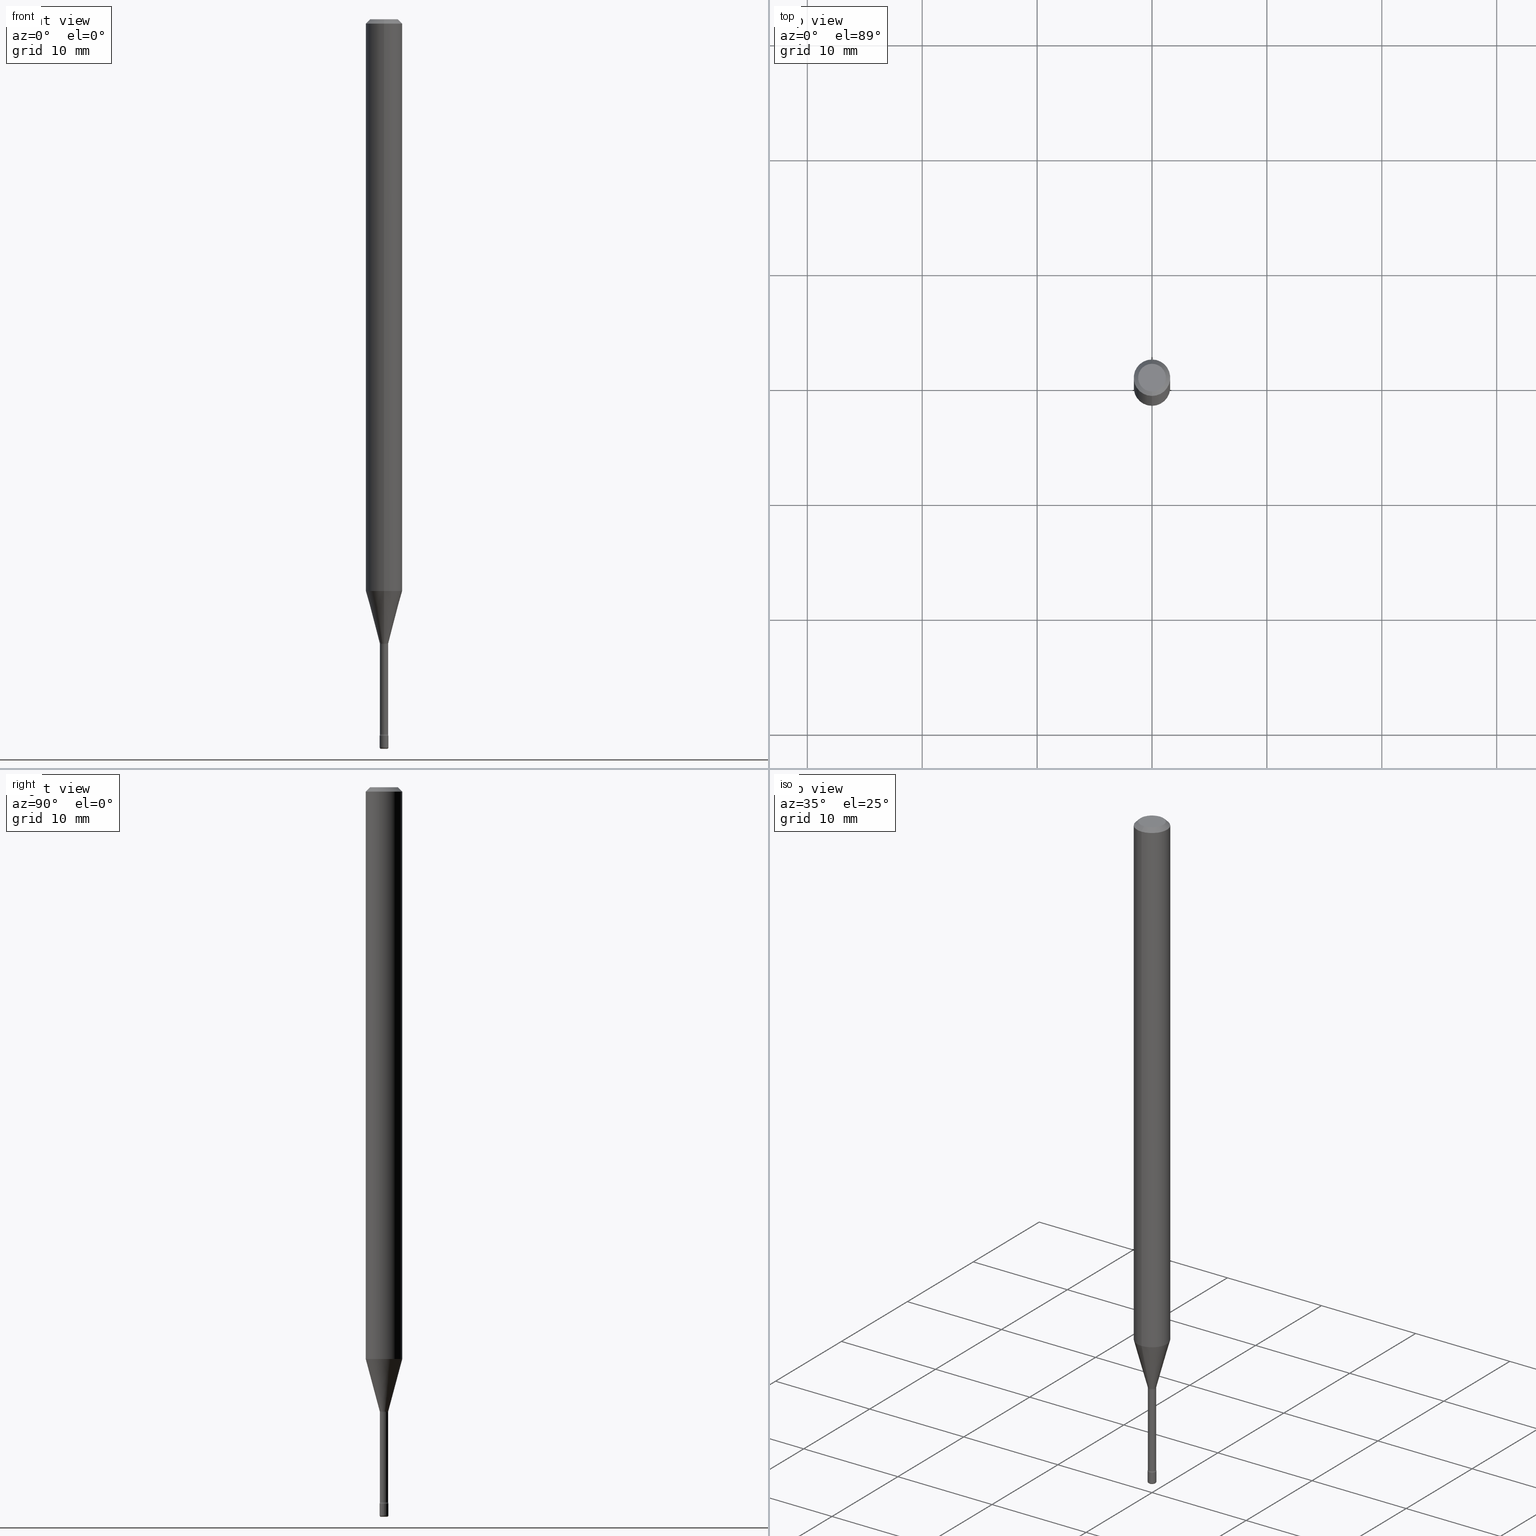
[diagram: canonical four-view strip — front | top / right | iso, engineering-drawing reading convention]
A machine part, canonical four-view strip (front | top / right | iso — engineering-drawing reading convention). The complete STEP part file that produces these views, byte-faithful:
ISO-10303-21;
HEADER;
FILE_DESCRIPTION (( 'STEP AP203' ),
    '1' );
FILE_NAME ('08895.STEP',
    '2024-03-06T20:09:28',
    ( '' ),
    ( '' ),
    'SwSTEP 2.0',
    'SolidWorks 2023',
    '' );
FILE_SCHEMA (( 'CONFIG_CONTROL_DESIGN' ));
ENDSEC;

DATA;
#1 = COORDINATED_UNIVERSAL_TIME_OFFSET ( 5, 0, .BEHIND. ) ;
#2 = DIRECTION ( 'NONE',  ( -2.445468806185136597E-29, 3.491481338843145583E-15, 1.000000000000000000 ) ) ;
#3 = EDGE_CURVE ( 'NONE', #459, #292, #555, .T. ) ;
#4 = PLANE ( 'NONE',  #319 ) ;
#5 = AXIS2_PLACEMENT_3D ( 'NONE', #564, #521, #468 ) ;
#6 = CARTESIAN_POINT ( 'NONE',  ( 5.238132526377788520E-29, -7.478664998702409610E-15, -2.141974787463811314 ) ) ;
#7 = EDGE_CURVE ( 'NONE', #29, #292, #561, .T. ) ;
#8 = SHAPE_DEFINITION_REPRESENTATION ( #64, #335 ) ;
#9 = ORIENTED_EDGE ( 'NONE', *, *, #115, .F. ) ;
#10 = CARTESIAN_POINT ( 'NONE',  ( -4.364351673553916201E-16, -0.06250000000000000000, 6.962907463373856563E-16 ) ) ;
#11 = ORIENTED_EDGE ( 'NONE', *, *, #540, .F. ) ;
#12 = VERTEX_POINT ( 'NONE', #214 ) ;
#13 = DIRECTION ( 'NONE',  ( -6.982962677686265922E-15, -1.000000000000000000, 3.491477559138235068E-15 ) ) ;
#14 = ORIENTED_EDGE ( 'NONE', *, *, #167, .T. ) ;
#15 = ADVANCED_FACE ( 'NONE', ( #163 ), #38, .F. ) ;
#16 = EDGE_CURVE ( 'NONE', #86, #406, #130, .T. ) ;
#17 = AXIS2_PLACEMENT_3D ( 'NONE', #345, #294, #73 ) ;
#18 = CIRCLE ( 'NONE', #114, 0.01500000000000003240 ) ;
#19 = VERTEX_POINT ( 'NONE', #470 ) ;
#20 = SECURITY_CLASSIFICATION ( '', '', #170 ) ;
#21 = DIMENSIONAL_EXPONENTS ( 1.000000000000000000, 0.000000000000000000, 0.000000000000000000, 0.000000000000000000, 0.000000000000000000, 0.000000000000000000, 0.000000000000000000 ) ;
#22 = ORIENTED_EDGE ( 'NONE', *, *, #565, .T. ) ;
#23 = CARTESIAN_POINT ( 'NONE',  ( 4.440892098501108353E-16, 0.06249999999999995143, -0.01500000000000024578 ) ) ;
#24 = VERTEX_POINT ( 'NONE', #110 ) ;
#25 = CARTESIAN_POINT ( 'NONE',  ( 3.668207168308460227E-31, -5.237216338707361944E-17, -0.01500000000000002720 ) ) ;
#26 = EDGE_CURVE ( 'NONE', #19, #481, #72, .T. ) ;
#27 = ORIENTED_EDGE ( 'NONE', *, *, #343, .F. ) ;
#28 = DIRECTION ( 'NONE',  ( -2.445468806185136597E-29, 3.491481338843145583E-15, 1.000000000000000000 ) ) ;
#29 = VERTEX_POINT ( 'NONE', #300 ) ;
#30 = AXIS2_PLACEMENT_3D ( 'NONE', #134, #57, #381 ) ;
#31 = CC_DESIGN_PERSON_AND_ORGANIZATION_ASSIGNMENT ( #358, #490, ( #20 ) ) ;
#32 = CARTESIAN_POINT ( 'NONE',  ( 1.033839680531545582E-16, 0.01409999999999143362, -2.449882383367230521 ) ) ;
#33 = ORIENTED_EDGE ( 'NONE', *, *, #427, .F. ) ;
#34 = FACE_OUTER_BOUND ( 'NONE', #79, .T. ) ;
#35 = ORIENTED_EDGE ( 'NONE', *, *, #332, .T. ) ;
#36 = CARTESIAN_POINT ( 'NONE',  ( 2.067679361062415209E-16, 0.02909999999999252074, -2.141974787463811314 ) ) ;
#37 = ORIENTED_EDGE ( 'NONE', *, *, #16, .F. ) ;
#38 = TOROIDAL_SURFACE ( 'NONE', #366, 0.02910000000000000780, 0.01500000000000002200 ) ;
#39 = AXIS2_PLACEMENT_3D ( 'NONE', #263, #492, #362 ) ;
#40 = DATE_TIME_ROLE ( 'creation_date' ) ;
#41 = CARTESIAN_POINT ( 'NONE',  ( 0.01499999999999999944, -8.676331127025216680E-15, -2.455000000000000071 ) ) ;
#42 = LINE ( 'NONE', #174, #259 ) ;
#43 = EDGE_CURVE ( 'NONE', #426, #143, #562, .T. ) ;
#44 = CARTESIAN_POINT ( 'NONE',  ( 5.228644161041752934E-29, -7.465101989351990399E-15, -2.138092501787273392 ) ) ;
#45 = CIRCLE ( 'NONE', #249, 0.01461111260566397632 ) ;
#46 = CONICAL_SURFACE ( 'NONE', #413, 0.01461111260566397632, 0.2617993877991501295 ) ;
#47 = CARTESIAN_POINT ( 'NONE',  ( 3.316907271900976589E-16, 0.04750000000000000749, 5.964683201999552744E-17 ) ) ;
#48 = CARTESIAN_POINT ( 'NONE',  ( 4.791580307186014448E-29, -6.841091988977007284E-15, -1.959368740913666862 ) ) ;
#49 = ORIENTED_EDGE ( 'NONE', *, *, #59, .F. ) ;
#50 = FACE_OUTER_BOUND ( 'NONE', #339, .T. ) ;
#51 = APPROVAL ( #191, 'UNSPECIFIED' ) ;
#52 = VECTOR ( 'NONE', #373, 39.37007874015748143 ) ;
#53 = ORIENTED_EDGE ( 'NONE', *, *, #260, .T. ) ;
#54 = CIRCLE ( 'NONE', #213, 0.04750000000000000749 ) ;
#55 = CARTESIAN_POINT ( 'NONE',  ( -1.169113584055446105E-44, 1.669184350826100908E-30, 4.780733988912460139E-16 ) ) ;
#56 = PERSON_AND_ORGANIZATION ( #415, #324 ) ;
#57 = DIRECTION ( 'NONE',  ( -2.445471445538969048E-29, 3.491477559138235068E-15, 1.000000000000000000 ) ) ;
#58 = ORIENTED_EDGE ( 'NONE', *, *, #115, .T. ) ;
#59 = EDGE_CURVE ( 'NONE', #240, #133, #433, .T. ) ;
#60 = DIRECTION ( 'NONE',  ( -2.445471445538969048E-29, 3.491477559138235068E-15, 1.000000000000000000 ) ) ;
#61 = AXIS2_PLACEMENT_3D ( 'NONE', #346, #515, #116 ) ;
#62 = CARTESIAN_POINT ( 'NONE',  ( 5.238132526377788520E-29, -7.478664998702409610E-15, -2.141974787463811314 ) ) ;
#63 = TOROIDAL_SURFACE ( 'NONE', #30, 0.02910000000000000780, 0.01500000000000002200 ) ;
#64 = PRODUCT_DEFINITION_SHAPE ( 'NONE', 'NONE',  #393 ) ;
#65 = ORIENTED_EDGE ( 'NONE', *, *, #235, .F. ) ;
#66 = ADVANCED_FACE ( 'NONE', ( #444 ), #4, .T. ) ;
#67 = CARTESIAN_POINT ( 'NONE',  ( 5.238138179807151647E-29, -7.478656902669786620E-15, -2.141974787463811314 ) ) ;
#68 = DIRECTION ( 'NONE',  ( -6.982962677686265922E-15, -1.000000000000000000, 3.491477559138233884E-15 ) ) ;
#69 = EDGE_CURVE ( 'NONE', #426, #481, #42, .T. ) ;
#70 = CARTESIAN_POINT ( 'NONE',  ( 2.067679361062490890E-16, 0.02909999999999145562, -2.449882383367230521 ) ) ;
#71 = FACE_OUTER_BOUND ( 'NONE', #516, .T. ) ;
#72 = CIRCLE ( 'NONE', #112, 0.01409999999999999622 ) ;
#73 = DIRECTION ( 'NONE',  ( -6.982962677686265922E-15, -1.000000000000000000, 3.483106191921935554E-15 ) ) ;
#74 = AXIS2_PLACEMENT_3D ( 'NONE', #467, #28, #245 ) ;
#75 = DIRECTION ( 'NONE',  ( -2.445471445538969048E-29, 3.491477559138235068E-15, 1.000000000000000000 ) ) ;
#76 = VERTEX_POINT ( 'NONE', #317 ) ;
#77 = CC_DESIGN_PERSON_AND_ORGANIZATION_ASSIGNMENT ( #271, #318, ( #165 ) ) ;
#78 = CARTESIAN_POINT ( 'NONE',  ( 3.840629472727447874E-16, 0.04750000000000000749, -1.929345507921888929E-16 ) ) ;
#79 = EDGE_LOOP ( 'NONE', ( #449, #156, #369, #560 ) ) ;
#80 = CARTESIAN_POINT ( 'NONE',  ( 1.065814103640751253E-16, 0.01499999999999144032, -2.455000000000000071 ) ) ;
#81 = VECTOR ( 'NONE', #258, 39.37007874015748143 ) ;
#82 = PLANE ( 'NONE',  #232 ) ;
#83 = PRODUCT_RELATED_PRODUCT_CATEGORY ( 'detail', '', ( #471 ) ) ;
#84 = COORDINATED_UNIVERSAL_TIME_OFFSET ( 5, 0, .BEHIND. ) ;
#85 = DIRECTION ( 'NONE',  ( -2.445468806185136877E-29, 3.491481338843145188E-15, 1.000000000000000000 ) ) ;
#86 = VERTEX_POINT ( 'NONE', #454 ) ;
#87 = DIRECTION ( 'NONE',  ( -6.982962677686265133E-15, -1.000000000000000000, 0.000000000000000000 ) ) ;
#88 = FACE_OUTER_BOUND ( 'NONE', #519, .T. ) ;
#89 = CIRCLE ( 'NONE', #526, 0.06250000000000000000 ) ;
#90 = CONICAL_SURFACE ( 'NONE', #544, 0.06250000000000000000, 0.7853981633974480570 ) ;
#91 = DIRECTION ( 'NONE',  ( 0.000000000000000000, 0.000000000000000000, 1.000000000000000000 ) ) ;
#92 = DIRECTION ( 'NONE',  ( -2.445468806185136597E-29, 3.491481338843145583E-15, 1.000000000000000000 ) ) ;
#93 = CARTESIAN_POINT ( 'NONE',  ( -0.01500000000000000291, 1.065814103640150486E-16, -7.378402635382359408E-31 ) ) ;
#94 = CARTESIAN_POINT ( 'NONE',  ( 6.003625919184510659E-29, -8.571586686859923311E-15, -2.455000000000000071 ) ) ;
#95 = CIRCLE ( 'NONE', #270, 0.01409999999999998754 ) ;
#96 = LOCAL_TIME ( 15, 9, 28.00000000000000000, #123 ) ;
#97 = CARTESIAN_POINT ( 'NONE',  ( -0.01000000000000000021, -8.631156801790744428E-15, -2.500000000000000000 ) ) ;
#98 = ADVANCED_FACE ( 'NONE', ( #408 ), #219, .F. ) ;
#99 = CARTESIAN_POINT ( 'NONE',  ( 5.228644161041752934E-29, -7.465101989351990399E-15, -2.138092501787273392 ) ) ;
#100 = ORIENTED_EDGE ( 'NONE', *, *, #107, .F. ) ;
#101 = DIRECTION ( 'NONE',  ( -2.445471445538969048E-29, 3.491477559138235068E-15, 1.000000000000000000 ) ) ;
#102 = ORIENTED_EDGE ( 'NONE', *, *, #7, .F. ) ;
#103 = ADVANCED_FACE ( 'NONE', ( #525 ), #355, .T. ) ;
#104 = AXIS2_PLACEMENT_3D ( 'NONE', #70, #474, #248 ) ;
#105 = CIRCLE ( 'NONE', #261, 0.01409999999999999622 ) ;
#106 = CARTESIAN_POINT ( 'NONE',  ( 4.440892098501102436E-16, 0.06249999999999313743, -1.959368740913667306 ) ) ;
#107 = EDGE_CURVE ( 'NONE', #133, #210, #239, .T. ) ;
#108 = ORIENTED_EDGE ( 'NONE', *, *, #570, .F. ) ;
#109 = FACE_OUTER_BOUND ( 'NONE', #522, .T. ) ;
#110 = CARTESIAN_POINT ( 'NONE',  ( -3.773273898774340269E-16, -0.04750000000000000749, 1.387558173259434365E-16 ) ) ;
#111 = CARTESIAN_POINT ( 'NONE',  ( -1.169113584055446105E-44, 1.669184350826100908E-30, 4.780733988912460139E-16 ) ) ;
#112 = AXIS2_PLACEMENT_3D ( 'NONE', #67, #557, #246 ) ;
#113 = ORIENTED_EDGE ( 'NONE', *, *, #351, .F. ) ;
#114 = AXIS2_PLACEMENT_3D ( 'NONE', #412, #328, #539 ) ;
#115 = EDGE_CURVE ( 'NONE', #76, #385, #199, .T. ) ;
#116 = DIRECTION ( 'NONE',  ( -1.000000000000000000, 6.982962677686265922E-15, -4.876176775795935793E-29 ) ) ;
#117 = EDGE_LOOP ( 'NONE', ( #58, #22, #150, #33 ) ) ;
#118 = CALENDAR_DATE ( 2024, 6, 3 ) ;
#119 = DIRECTION ( 'NONE',  ( -6.982962677686265922E-15, -1.000000000000000000, 0.000000000000000000 ) ) ;
#120 = CARTESIAN_POINT ( 'NONE',  ( 5.238138179807151647E-29, -7.478656902669786620E-15, -2.141974787463811314 ) ) ;
#121 = DIRECTION ( 'NONE',  ( -6.982962677686265922E-15, -1.000000000000000000, 0.000000000000000000 ) ) ;
#122 =( GEOMETRIC_REPRESENTATION_CONTEXT ( 3 ) GLOBAL_UNCERTAINTY_ASSIGNED_CONTEXT ( ( #142 ) ) GLOBAL_UNIT_ASSIGNED_CONTEXT ( ( #309, #354, #496 ) ) REPRESENTATION_CONTEXT ( 'NONE', 'WORKASPACE' ) );
#123 = COORDINATED_UNIVERSAL_TIME_OFFSET ( 5, 0, .BEHIND. ) ;
#124 = CC_DESIGN_PERSON_AND_ORGANIZATION_ASSIGNMENT ( #218, #401, ( #165 ) ) ;
#125 = DIRECTION ( 'NONE',  ( -1.807323732225328562E-15, -0.2588190451025179639, 0.9659258262890689783 ) ) ;
#126 = PERSON_AND_ORGANIZATION_ROLE ( 'creator' ) ;
#127 = DIRECTION ( 'NONE',  ( 1.000000000000000000, -6.982962677686268288E-15, 0.000000000000000000 ) ) ;
#128 = APPROVAL_DATE_TIME ( #316, #149 ) ;
#129 = DIRECTION ( 'NONE',  ( 6.982962677686265922E-15, 1.000000000000000000, -3.491477559138235068E-15 ) ) ;
#130 = CIRCLE ( 'NONE', #5, 0.06250000000000000000 ) ;
#131 = AXIS2_PLACEMENT_3D ( 'NONE', #296, #507, #469 ) ;
#132 = DIRECTION ( 'NONE',  ( -2.445468806185136597E-29, 3.491481338843145583E-15, 1.000000000000000000 ) ) ;
#133 = VERTEX_POINT ( 'NONE', #41 ) ;
#134 = CARTESIAN_POINT ( 'NONE',  ( 5.991110947347057702E-29, -8.553718623887254041E-15, -2.449882383367230521 ) ) ;
#135 = ORIENTED_EDGE ( 'NONE', *, *, #437, .F. ) ;
#136 = MANIFOLD_SOLID_BREP ( 'Body-Move/Copy2[2]', #189 ) ;
#137 = DIRECTION ( 'NONE',  ( -6.982962677686265922E-15, -1.000000000000000000, 0.000000000000000000 ) ) ;
#138 = CIRCLE ( 'NONE', #451, 0.06250000000000000000 ) ;
#139 = AXIS2_PLACEMENT_3D ( 'NONE', #382, #344, #207 ) ;
#140 = DIRECTION ( 'NONE',  ( -2.445468806185136597E-29, 3.491481338843145583E-15, 1.000000000000000000 ) ) ;
#141 = ORIENTED_EDGE ( 'NONE', *, *, #409, .T. ) ;
#142 = UNCERTAINTY_MEASURE_WITH_UNIT (LENGTH_MEASURE( 1.000000000000000082E-05 ), #309, 'distance_accuracy_value', 'NONE');
#143 = VERTEX_POINT ( 'NONE', #80 ) ;
#144 = VERTEX_POINT ( 'NONE', #314 ) ;
#145 = DIRECTION ( 'NONE',  ( 2.445471445538969048E-29, -3.491477559138235068E-15, -1.000000000000000000 ) ) ;
#146 = ORIENTED_EDGE ( 'NONE', *, *, #212, .F. ) ;
#147 = CARTESIAN_POINT ( 'NONE',  ( 0.01000000000000000021, -8.781075567190511627E-15, -2.495000000000000107 ) ) ;
#148 = EDGE_LOOP ( 'NONE', ( #220, #193, #547, #353 ) ) ;
#149 = APPROVAL ( #571, 'UNSPECIFIED' ) ;
#150 = ORIENTED_EDGE ( 'NONE', *, *, #409, .F. ) ;
#151 = AXIS2_PLACEMENT_3D ( 'NONE', #491, #267, #119 ) ;
#152 = AXIS2_PLACEMENT_3D ( 'NONE', #36, #161, #388 ) ;
#153 = DIRECTION ( 'NONE',  ( -2.445471445538969048E-29, 3.491477559138235068E-15, 1.000000000000000000 ) ) ;
#154 = CARTESIAN_POINT ( 'NONE',  ( 4.364351673553919652E-16, 0.06249999999999995143, -0.01500000000000024578 ) ) ;
#155 = DIRECTION ( 'NONE',  ( -2.445471445538969048E-29, 3.491477559138235068E-15, 1.000000000000000000 ) ) ;
#156 = ORIENTED_EDGE ( 'NONE', *, *, #212, .T. ) ;
#157 = EDGE_CURVE ( 'NONE', #253, #243, #45, .T. ) ;
#158 = DIRECTION ( 'NONE',  ( -2.445471445538969048E-29, 3.491477559138235068E-15, 1.000000000000000000 ) ) ;
#159 = EDGE_CURVE ( 'NONE', #243, #253, #179, .T. ) ;
#160 = CARTESIAN_POINT ( 'NONE',  ( 0.01500000000000000291, -1.047444401652940228E-16, 7.314265163693905266E-31 ) ) ;
#161 = DIRECTION ( 'NONE',  ( 1.000000000000000000, -7.105427357601001070E-15, 4.926315462254047297E-29 ) ) ;
#162 = AXIS2_PLACEMENT_3D ( 'NONE', #169, #2, #313 ) ;
#163 = FACE_OUTER_BOUND ( 'NONE', #148, .T. ) ;
#164 = CIRCLE ( 'NONE', #152, 0.01500000000000003240 ) ;
#165 = PRODUCT_DEFINITION_FORMATION_WITH_SPECIFIED_SOURCE ( 'ANY', '', #471, .NOT_KNOWN. ) ;
#166 = DIRECTION ( 'NONE',  ( -6.982962677686265922E-15, -1.000000000000000000, 3.491477559138235068E-15 ) ) ;
#167 = EDGE_CURVE ( 'NONE', #292, #29, #138, .T. ) ;
#168 = COORDINATED_UNIVERSAL_TIME_OFFSET ( 5, 0, .BEHIND. ) ;
#169 = CARTESIAN_POINT ( 'NONE',  ( 6.113672015462842613E-29, -8.728703347107864943E-15, -2.500000000000000000 ) ) ;
#170 = SECURITY_CLASSIFICATION_LEVEL ( 'unclassified' ) ;
#171 = CARTESIAN_POINT ( 'NONE',  ( -1.020288540047705920E-16, -0.01461111260567144257, -2.138092501787273392 ) ) ;
#172 = CONICAL_SURFACE ( 'NONE', #378, 0.01461111260566397632, 0.2617993877991501295 ) ;
#173 = CARTESIAN_POINT ( 'NONE',  ( 0.000000000000000000, 0.000000000000000000, 0.000000000000000000 ) ) ;
#174 = CARTESIAN_POINT ( 'NONE',  ( 1.001865257421740500E-16, 0.01409999999999999275, 4.288435653073969888E-16 ) ) ;
#175 = PERSON_AND_ORGANIZATION ( #415, #324 ) ;
#176 = DIRECTION ( 'NONE',  ( -6.982962677686265922E-15, -1.000000000000000000, 3.491477559138235068E-15 ) ) ;
#177 = EDGE_CURVE ( 'NONE', #406, #86, #89, .T. ) ;
#178 = DIRECTION ( 'NONE',  ( 1.000000000000000000, -6.982962677686266711E-15, 4.876176775795935793E-29 ) ) ;
#179 = CIRCLE ( 'NONE', #151, 0.01461111260566397632 ) ;
#180 = CIRCLE ( 'NONE', #302, 0.005000000000000042605 ) ;
#181 = DIRECTION ( 'NONE',  ( -2.445471445538969048E-29, 3.491477559138235068E-15, 1.000000000000000000 ) ) ;
#182 = CC_DESIGN_DATE_AND_TIME_ASSIGNMENT ( #380, #420, ( #20 ) ) ;
#183 = DIRECTION ( 'NONE',  ( -6.982962677686265922E-15, -1.000000000000000000, 3.491477559138235068E-15 ) ) ;
#184 = ORIENTED_EDGE ( 'NONE', *, *, #225, .T. ) ;
#185 = CALENDAR_DATE ( 2024, 6, 3 ) ;
#186 = CARTESIAN_POINT ( 'NONE',  ( 5.991117413453514741E-29, -8.553709364054779788E-15, -2.449882383367230521 ) ) ;
#187 = ORIENTED_EDGE ( 'NONE', *, *, #540, .T. ) ;
#188 = ORIENTED_EDGE ( 'NONE', *, *, #69, .F. ) ;
#189 = CLOSED_SHELL ( 'NONE', ( #363, #229, #356, #487, #416, #375, #338, #466, #308, #98, #217, #15, #532, #256 ) ) ;
#190 = TOROIDAL_SURFACE ( 'NONE', #139, 0.01000000000000000021, 0.005000000000000042605 ) ;
#191 = APPROVAL_STATUS ( 'not_yet_approved' ) ;
#192 = DIRECTION ( 'NONE',  ( 1.839019923739599526E-15, 0.2588190451025248473, 0.9659258262890673130 ) ) ;
#193 = ORIENTED_EDGE ( 'NONE', *, *, #387, .F. ) ;
#194 = FACE_OUTER_BOUND ( 'NONE', #558, .T. ) ;
#195 = EDGE_LOOP ( 'NONE', ( #65, #537, #461, #347 ) ) ;
#196 = EDGE_CURVE ( 'NONE', #24, #29, #567, .T. ) ;
#197 = DIRECTION ( 'NONE',  ( -6.982962677686265133E-15, -1.000000000000000000, 3.491477559138235068E-15 ) ) ;
#198 = ORIENTED_EDGE ( 'NONE', *, *, #225, .F. ) ;
#199 = CIRCLE ( 'NONE', #395, 0.01000000000000000021 ) ;
#200 = AXIS2_PLACEMENT_3D ( 'NONE', #173, #91, #486 ) ;
#201 = DIRECTION ( 'NONE',  ( -6.982962677686262766E-15, -1.000000000000000000, 0.000000000000000000 ) ) ;
#202 = ORIENTED_EDGE ( 'NONE', *, *, #26, .F. ) ;
#203 = ADVANCED_FACE ( 'NONE', ( #493 ), #262, .T. ) ;
#204 = CARTESIAN_POINT ( 'NONE',  ( -1.169113584055446105E-44, 1.669184350826100908E-30, 4.780733988912460139E-16 ) ) ;
#205 = ORIENTED_EDGE ( 'NONE', *, *, #43, .T. ) ;
#206 = APPLICATION_CONTEXT ( 'configuration controlled 3d designs of mechanical parts and assemblies' ) ;
#207 = DIRECTION ( 'NONE',  ( 1.000000000000000000, -6.982962677686248567E-15, 4.883557194083106735E-29 ) ) ;
#208 = ORIENTED_EDGE ( 'NONE', *, *, #473, .T. ) ;
#209 = AXIS2_PLACEMENT_3D ( 'NONE', #55, #289, #242 ) ;
#210 = VERTEX_POINT ( 'NONE', #529 ) ;
#211 = APPROVAL_STATUS ( 'not_yet_approved' ) ;
#212 = EDGE_CURVE ( 'NONE', #385, #76, #484, .T. ) ;
#213 = AXIS2_PLACEMENT_3D ( 'NONE', #551, #75, #254 ) ;
#214 = CARTESIAN_POINT ( 'NONE',  ( -1.047444401652340571E-16, -0.01500000000000858112, -2.455000000000000071 ) ) ;
#215 = PERSON_AND_ORGANIZATION ( #415, #324 ) ;
#216 = CARTESIAN_POINT ( 'NONE',  ( 0.000000000000000000, 0.000000000000000000, 0.000000000000000000 ) ) ;
#217 = ADVANCED_FACE ( 'NONE', ( #88 ), #82, .F. ) ;
#218 = PERSON_AND_ORGANIZATION ( #415, #324 ) ;
#219 = PLANE ( 'NONE',  #311 ) ;
#220 = ORIENTED_EDGE ( 'NONE', *, *, #43, .F. ) ;
#221 = PERSON_AND_ORGANIZATION_ROLE ( 'design_owner' ) ;
#222 = ORIENTED_EDGE ( 'NONE', *, *, #315, .F. ) ;
#223 = DIRECTION ( 'NONE',  ( -2.445471445538969048E-29, 3.491477559138235068E-15, 1.000000000000000000 ) ) ;
#224 = CC_DESIGN_SECURITY_CLASSIFICATION ( #20, ( #165 ) ) ;
#225 = EDGE_CURVE ( 'NONE', #243, #86, #569, .T. ) ;
#226 = DIRECTION ( 'NONE',  ( 2.445471445538968487E-29, -3.491477559138235068E-15, -1.000000000000000000 ) ) ;
#227 = DIRECTION ( 'NONE',  ( -2.445468806185136597E-29, 3.491481338843145583E-15, 1.000000000000000000 ) ) ;
#228 = EDGE_LOOP ( 'NONE', ( #141, #336, #100, #49 ) ) ;
#229 = ADVANCED_FACE ( 'NONE', ( #450 ), #572, .T. ) ;
#230 = LINE ( 'NONE', #93, #52 ) ;
#231 = ORIENTED_EDGE ( 'NONE', *, *, #343, .T. ) ;
#232 = AXIS2_PLACEMENT_3D ( 'NONE', #269, #446, #176 ) ;
#233 = AXIS2_PLACEMENT_3D ( 'NONE', #460, #145, #536 ) ;
#234 = LINE ( 'NONE', #541, #527 ) ;
#235 = EDGE_CURVE ( 'NONE', #514, #210, #230, .T. ) ;
#236 = ORIENTED_EDGE ( 'NONE', *, *, #196, .F. ) ;
#237 = DIRECTION ( 'NONE',  ( -2.445471445538969048E-29, 3.491477559138235068E-15, 1.000000000000000000 ) ) ;
#238 = CARTESIAN_POINT ( 'NONE',  ( 1.038181992333259507E-16, 0.01461111260565651181, -2.138092501787273392 ) ) ;
#239 = CIRCLE ( 'NONE', #377, 0.01499999999999999944 ) ;
#240 = VERTEX_POINT ( 'NONE', #505 ) ;
#241 = CIRCLE ( 'NONE', #497, 0.01499999999999999944 ) ;
#242 = DIRECTION ( 'NONE',  ( -6.982962677686265133E-15, -1.000000000000000000, 3.491477559138235068E-15 ) ) ;
#243 = VERTEX_POINT ( 'NONE', #504 ) ;
#244 = ORIENTED_EDGE ( 'NONE', *, *, #7, .T. ) ;
#245 = DIRECTION ( 'NONE',  ( 1.000000000000000000, -6.982962677686248567E-15, 4.883557194083106735E-29 ) ) ;
#246 = DIRECTION ( 'NONE',  ( -6.982962677686265133E-15, -1.000000000000000000, 0.000000000000000000 ) ) ;
#247 = FACE_OUTER_BOUND ( 'NONE', #511, .T. ) ;
#248 = DIRECTION ( 'NONE',  ( 7.105427357600997914E-15, 1.000000000000000000, 0.000000000000000000 ) ) ;
#249 = AXIS2_PLACEMENT_3D ( 'NONE', #44, #367, #121 ) ;
#250 = AXIS2_PLACEMENT_3D ( 'NONE', #293, #153, #68 ) ;
#251 = DIRECTION ( 'NONE',  ( -6.982962677686265133E-15, -1.000000000000000000, 0.000000000000000000 ) ) ;
#252 = APPROVAL_PERSON_ORGANIZATION ( #215, #149, #533 ) ;
#253 = VERTEX_POINT ( 'NONE', #428 ) ;
#254 = DIRECTION ( 'NONE',  ( -6.982962677686265133E-15, -1.000000000000000000, 3.491477559138234673E-15 ) ) ;
#255 = ORIENTED_EDGE ( 'NONE', *, *, #159, .F. ) ;
#256 = ADVANCED_FACE ( 'NONE', ( #333 ), #542, .F. ) ;
#257 = DIRECTION ( 'NONE',  ( -6.982962677686265922E-15, -1.000000000000000000, 0.000000000000000000 ) ) ;
#258 = DIRECTION ( 'NONE',  ( 4.937700262164546464E-15, 0.7071067811865449082, -0.7071067811865501263 ) ) ;
#259 = VECTOR ( 'NONE', #488, 39.37007874015748143 ) ;
#260 = EDGE_CURVE ( 'NONE', #86, #29, #462, .T. ) ;
#261 = AXIS2_PLACEMENT_3D ( 'NONE', #120, #566, #87 ) ;
#262 = CYLINDRICAL_SURFACE ( 'NONE', #423, 0.01500000000000000291 ) ;
#263 = CARTESIAN_POINT ( 'NONE',  ( -0.01000000000000000021, -8.640191666837638248E-15, -2.495000000000000107 ) ) ;
#264 = DIRECTION ( 'NONE',  ( -2.445468806185136597E-29, 3.491481338843145583E-15, 1.000000000000000000 ) ) ;
#265 = ORIENTED_EDGE ( 'NONE', *, *, #3, .T. ) ;
#266 = LENGTH_MEASURE_WITH_UNIT ( LENGTH_MEASURE( 0.02539999999999999897 ), #448 );
#267 = DIRECTION ( 'NONE',  ( -2.445471445538969048E-29, 3.491477559138235068E-15, 1.000000000000000000 ) ) ;
#268 = EDGE_CURVE ( 'NONE', #514, #240, #278, .T. ) ;
#269 = CARTESIAN_POINT ( 'NONE',  ( 1.047444401653540256E-16, 0.01499999999999142818, -2.455000000000000071 ) ) ;
#270 = AXIS2_PLACEMENT_3D ( 'NONE', #186, #325, #499 ) ;
#271 = PERSON_AND_ORGANIZATION ( #415, #324 ) ;
#272 = DIRECTION ( 'NONE',  ( 1.000000000000000000, -6.982962677686235945E-15, 0.000000000000000000 ) ) ;
#273 = EDGE_CURVE ( 'NONE', #210, #133, #241, .T. ) ;
#274 = CARTESIAN_POINT ( 'NONE',  ( 6.624753462844242223E-46, -9.458010906359042957E-32, -2.708936673312273130E-17 ) ) ;
#275 = DATE_AND_TIME ( #538, #350 ) ;
#276 = DIRECTION ( 'NONE',  ( -2.445471445538969048E-29, 3.491477559138235068E-15, 1.000000000000000000 ) ) ;
#277 = APPROVAL ( #211, 'UNSPECIFIED' ) ;
#278 = CIRCLE ( 'NONE', #357, 0.01500000000000000291 ) ;
#279 = CC_DESIGN_APPROVAL ( #51, ( #20 ) ) ;
#280 = ORIENTED_EDGE ( 'NONE', *, *, #177, .T. ) ;
#281 = CARTESIAN_POINT ( 'NONE',  ( 5.991117413453514741E-29, -8.553709364054779788E-15, -2.449882383367230521 ) ) ;
#282 = EDGE_LOOP ( 'NONE', ( #545, #205, #208, #135 ) ) ;
#283 = APPROVAL_DATE_TIME ( #275, #51 ) ;
#284 = DIRECTION ( 'NONE',  ( -6.982962677686265133E-15, -1.000000000000000000, 3.491477559138234673E-15 ) ) ;
#285 = ORIENTED_EDGE ( 'NONE', *, *, #473, .F. ) ;
#286 = DESIGN_CONTEXT ( 'detailed design', #206, 'design' ) ;
#287 = CC_DESIGN_DATE_AND_TIME_ASSIGNMENT ( #528, #40, ( #393 ) ) ;
#288 = ORIENTED_EDGE ( 'NONE', *, *, #107, .T. ) ;
#289 = DIRECTION ( 'NONE',  ( -2.445471445538969048E-29, 3.491477559138235068E-15, 1.000000000000000000 ) ) ;
#290 = CLOSED_SHELL ( 'NONE', ( #103, #447, #66, #530, #506, #203 ) ) ;
#291 = LOCAL_TIME ( 15, 9, 28.00000000000000000, #168 ) ;
#292 = VERTEX_POINT ( 'NONE', #23 ) ;
#293 = CARTESIAN_POINT ( 'NONE',  ( -1.169113584055446105E-44, 1.669184350826100908E-30, 4.780733988912460139E-16 ) ) ;
#294 = DIRECTION ( 'NONE',  ( -2.445471445538969048E-29, 3.491477559138235068E-15, 1.000000000000000000 ) ) ;
#295 = ORIENTED_EDGE ( 'NONE', *, *, #167, .F. ) ;
#296 = CARTESIAN_POINT ( 'NONE',  ( 6.101444671431915719E-29, -8.711245940413648329E-15, -2.495000000000000107 ) ) ;
#297 = ORIENTED_EDGE ( 'NONE', *, *, #260, .F. ) ;
#298 = ORIENTED_EDGE ( 'NONE', *, *, #16, .T. ) ;
#299 = DIRECTION ( 'NONE',  ( -2.445471445538969048E-29, 3.491477559138235068E-15, 1.000000000000000000 ) ) ;
#300 = CARTESIAN_POINT ( 'NONE',  ( -4.364351673553912750E-16, -0.06250000000000005551, -0.01499999999999981036 ) ) ;
#301 = AXIS2_PLACEMENT_3D ( 'NONE', #62, #101, #13 ) ;
#302 = AXIS2_PLACEMENT_3D ( 'NONE', #147, #384, #438 ) ;
#303 = FACE_OUTER_BOUND ( 'NONE', #391, .T. ) ;
#304 = CC_DESIGN_APPROVAL ( #149, ( #165 ) ) ;
#305 = ORIENTED_EDGE ( 'NONE', *, *, #513, .F. ) ;
#306 = CARTESIAN_POINT ( 'NONE',  ( -0.01500000000000002373, -8.604664530049633996E-15, -2.495000000000000107 ) ) ;
#307 = ORIENTED_EDGE ( 'NONE', *, *, #69, .T. ) ;
#308 = ADVANCED_FACE ( 'NONE', ( #194 ), #368, .T. ) ;
#309 =( CONVERSION_BASED_UNIT ( 'INCH', #266 ) LENGTH_UNIT ( ) NAMED_UNIT ( #21 ) );
#310 = DIRECTION ( 'NONE',  ( -6.982962677686265922E-15, -1.000000000000000000, 3.483106191921935554E-15 ) ) ;
#311 = AXIS2_PLACEMENT_3D ( 'NONE', #47, #226, #129 ) ;
#312 = AXIS2_PLACEMENT_3D ( 'NONE', #392, #158, #257 ) ;
#313 = DIRECTION ( 'NONE',  ( 1.000000000000000000, -6.982962677686235945E-15, 0.000000000000000000 ) ) ;
#314 = CARTESIAN_POINT ( 'NONE',  ( -9.845977375531634842E-17, -0.01410000000000854146, -2.449882383367230521 ) ) ;
#315 = EDGE_CURVE ( 'NONE', #144, #19, #234, .T. ) ;
#316 = DATE_AND_TIME ( #524, #291 ) ;
#317 = CARTESIAN_POINT ( 'NONE',  ( 0.01000000000000000021, -8.798532973884726663E-15, -2.500000000000000000 ) ) ;
#318 = PERSON_AND_ORGANIZATION_ROLE ( 'creator' ) ;
#319 = AXIS2_PLACEMENT_3D ( 'NONE', #407, #361, #534 ) ;
#320 = CARTESIAN_POINT ( 'NONE',  ( 0.000000000000000000, 0.000000000000000000, 0.000000000000000000 ) ) ;
#321 = TOROIDAL_SURFACE ( 'NONE', #74, 0.01000000000000000021, 0.005000000000000042605 ) ;
#322 = CIRCLE ( 'NONE', #131, 0.01500000000000000291 ) ;
#323 = EDGE_CURVE ( 'NONE', #426, #144, #95, .T. ) ;
#324 = ORGANIZATION ( 'UNSPECIFIED', 'UNSPECIFIED', '' ) ;
#325 = DIRECTION ( 'NONE',  ( -2.445471445538969048E-29, 3.491477559138235068E-15, 1.000000000000000000 ) ) ;
#326 = DIRECTION ( 'NONE',  ( 1.000000000000000000, -6.982962677686266711E-15, 0.000000000000000000 ) ) ;
#327 = ORIENTED_EDGE ( 'NONE', *, *, #315, .T. ) ;
#328 = DIRECTION ( 'NONE',  ( -1.000000000000000000, 6.982962677686265922E-15, -4.883557194083112901E-29 ) ) ;
#329 = CIRCLE ( 'NONE', #442, 0.01500000000000002373 ) ;
#330 = ORIENTED_EDGE ( 'NONE', *, *, #520, .F. ) ;
#331 = EDGE_LOOP ( 'NONE', ( #305, #255, #35, #478 ) ) ;
#332 = EDGE_CURVE ( 'NONE', #243, #19, #18, .T. ) ;
#333 = FACE_OUTER_BOUND ( 'NONE', #331, .T. ) ;
#334 = MANIFOLD_SOLID_BREP ( 'Body-Move/Copy2[1]', #290 ) ;
#335 = ADVANCED_BREP_SHAPE_REPRESENTATION ( '08895', ( #334, #136, #200 ), #122 ) ;
#336 = ORIENTED_EDGE ( 'NONE', *, *, #235, .T. ) ;
#337 = CYLINDRICAL_SURFACE ( 'NONE', #452, 0.06250000000000000000 ) ;
#338 = ADVANCED_FACE ( 'NONE', ( #376 ), #46, .T. ) ;
#339 = EDGE_LOOP ( 'NONE', ( #417, #394, #436, #550 ) ) ;
#340 = VECTOR ( 'NONE', #192, 39.37007874015747433 ) ;
#341 = DIRECTION ( 'NONE',  ( 2.445471445538969048E-29, -3.491477559138235068E-15, -1.000000000000000000 ) ) ;
#342 = ORIENTED_EDGE ( 'NONE', *, *, #3, .F. ) ;
#343 = EDGE_CURVE ( 'NONE', #459, #24, #396, .T. ) ;
#344 = DIRECTION ( 'NONE',  ( -2.445468806185136597E-29, 3.491481338843145583E-15, 1.000000000000000000 ) ) ;
#345 = CARTESIAN_POINT ( 'NONE',  ( 3.668207168308460227E-31, -5.237216338707361944E-17, -0.01500000000000002720 ) ) ;
#346 = CARTESIAN_POINT ( 'NONE',  ( 6.982962677692379396E-17, 0.009999999999991271080, -2.500000000000000000 ) ) ;
#347 = ORIENTED_EDGE ( 'NONE', *, *, #273, .F. ) ;
#348 = AXIS2_PLACEMENT_3D ( 'NONE', #349, #435, #390 ) ;
#349 = CARTESIAN_POINT ( 'NONE',  ( 6.003632398798168795E-29, -8.571577407684366669E-15, -2.455000000000000071 ) ) ;
#350 = LOCAL_TIME ( 15, 9, 28.00000000000000000, #410 ) ;
#351 = EDGE_CURVE ( 'NONE', #253, #406, #455, .T. ) ;
#352 = PERSON_AND_ORGANIZATION ( #415, #324 ) ;
#353 = ORIENTED_EDGE ( 'NONE', *, *, #520, .T. ) ;
#354 =( NAMED_UNIT ( * ) PLANE_ANGLE_UNIT ( ) SI_UNIT ( $, .RADIAN. ) );
#355 = CYLINDRICAL_SURFACE ( 'NONE', #411, 0.01500000000000000291 ) ;
#356 = ADVANCED_FACE ( 'NONE', ( #422 ), #63, .F. ) ;
#357 = AXIS2_PLACEMENT_3D ( 'NONE', #456, #140, #326 ) ;
#358 = PERSON_AND_ORGANIZATION ( #415, #324 ) ;
#359 = DIRECTION ( 'NONE',  ( -2.445468806185136597E-29, 3.491481338843145583E-15, 1.000000000000000000 ) ) ;
#360 = APPLICATION_PROTOCOL_DEFINITION ( 'international standard', 'config_control_design', 1994, #479 ) ;
#361 = DIRECTION ( 'NONE',  ( -2.438088387897960049E-29, 3.491481338843145188E-15, 1.000000000000000000 ) ) ;
#362 = DIRECTION ( 'NONE',  ( -1.000000000000000000, 7.105427357601060234E-15, 0.000000000000000000 ) ) ;
#363 = ADVANCED_FACE ( 'NONE', ( #50 ), #404, .F. ) ;
#364 = DIRECTION ( 'NONE',  ( -2.445471445538969048E-29, 3.491477559138235068E-15, 1.000000000000000000 ) ) ;
#365 = APPROVAL_ROLE ( '' ) ;
#366 = AXIS2_PLACEMENT_3D ( 'NONE', #431, #389, #166 ) ;
#367 = DIRECTION ( 'NONE',  ( -2.445471445538969048E-29, 3.491477559138235068E-15, 1.000000000000000000 ) ) ;
#368 = CONICAL_SURFACE ( 'NONE', #233, 0.06250000000000000000, 0.7853981633974480570 ) ;
#369 = ORIENTED_EDGE ( 'NONE', *, *, #427, .T. ) ;
#370 = LOCAL_TIME ( 15, 9, 28.00000000000000000, #84 ) ;
#371 = DIRECTION ( 'NONE',  ( 1.000000000000000000, -6.982962677686268288E-15, 0.000000000000000000 ) ) ;
#372 = EDGE_LOOP ( 'NONE', ( #113, #429, #184, #523 ) ) ;
#373 = DIRECTION ( 'NONE',  ( -2.445468806185136877E-29, 3.491481338843145188E-15, 1.000000000000000000 ) ) ;
#374 = ORIENTED_EDGE ( 'NONE', *, *, #196, .T. ) ;
#375 = ADVANCED_FACE ( 'NONE', ( #546 ), #172, .T. ) ;
#376 = FACE_OUTER_BOUND ( 'NONE', #372, .T. ) ;
#377 = AXIS2_PLACEMENT_3D ( 'NONE', #498, #227, #127 ) ;
#378 = AXIS2_PLACEMENT_3D ( 'NONE', #500, #276, #501 ) ;
#379 = EDGE_LOOP ( 'NONE', ( #503, #307, #202, #222 ) ) ;
#380 = DATE_AND_TIME ( #185, #370 ) ;
#381 = DIRECTION ( 'NONE',  ( -6.982962677686265922E-15, -1.000000000000000000, 3.491477559138235068E-15 ) ) ;
#382 = CARTESIAN_POINT ( 'NONE',  ( 6.101444671431915719E-29, -8.711245940413648329E-15, -2.495000000000000107 ) ) ;
#383 = EDGE_LOOP ( 'NONE', ( #231, #187 ) ) ;
#384 = DIRECTION ( 'NONE',  ( -6.982962677686266711E-15, -1.000000000000000000, 3.491481338843145583E-15 ) ) ;
#385 = VERTEX_POINT ( 'NONE', #97 ) ;
#386 = VECTOR ( 'NONE', #543, 39.37007874015748143 ) ;
#387 = EDGE_CURVE ( 'NONE', #144, #426, #502, .T. ) ;
#388 = DIRECTION ( 'NONE',  ( 7.105427357600997914E-15, 1.000000000000000000, 0.000000000000000000 ) ) ;
#389 = DIRECTION ( 'NONE',  ( -2.445471445538969048E-29, 3.491477559138235068E-15, 1.000000000000000000 ) ) ;
#390 = DIRECTION ( 'NONE',  ( -6.982962677686265922E-15, -1.000000000000000000, 0.000000000000000000 ) ) ;
#391 = EDGE_LOOP ( 'NONE', ( #188, #441, #327, #108 ) ) ;
#392 = CARTESIAN_POINT ( 'NONE',  ( 6.003632398798168795E-29, -8.571577407684366669E-15, -2.455000000000000071 ) ) ;
#393 = PRODUCT_DEFINITION ( 'UNKNOWN', '', #165, #286 ) ;
#394 = ORIENTED_EDGE ( 'NONE', *, *, #513, .T. ) ;
#395 = AXIS2_PLACEMENT_3D ( 'NONE', #531, #92, #272 ) ;
#396 = CIRCLE ( 'NONE', #553, 0.04750000000000000749 ) ;
#397 = APPLICATION_PROTOCOL_DEFINITION ( 'international standard', 'config_control_design', 1994, #206 ) ;
#398 = EDGE_LOOP ( 'NONE', ( #288, #548 ) ) ;
#399 = MECHANICAL_CONTEXT ( 'NONE', #479, 'mechanical' ) ;
#400 = DIRECTION ( 'NONE',  ( 1.000000000000000000, -6.982962677686266711E-15, 4.876176775795935793E-29 ) ) ;
#401 = PERSON_AND_ORGANIZATION_ROLE ( 'design_supplier' ) ;
#402 = CARTESIAN_POINT ( 'NONE',  ( -4.287811248607203282E-16, -0.06250000000000005551, -0.01499999999999981036 ) ) ;
#403 = CALENDAR_DATE ( 2024, 6, 3 ) ;
#404 = TOROIDAL_SURFACE ( 'NONE', #563, 0.02910000000000000087, 0.01500000000000002720 ) ;
#405 = DIRECTION ( 'NONE',  ( -6.982962677686265922E-15, -1.000000000000000000, 4.370956789862821150E-15 ) ) ;
#406 = VERTEX_POINT ( 'NONE', #106 ) ;
#407 = CARTESIAN_POINT ( 'NONE',  ( 6.003625919184510659E-29, -8.571586686859923311E-15, -2.455000000000000071 ) ) ;
#408 = FACE_OUTER_BOUND ( 'NONE', #383, .T. ) ;
#409 = EDGE_CURVE ( 'NONE', #240, #514, #322, .T. ) ;
#410 = COORDINATED_UNIVERSAL_TIME_OFFSET ( 5, 0, .BEHIND. ) ;
#411 = AXIS2_PLACEMENT_3D ( 'NONE', #320, #359, #178 ) ;
#412 = CARTESIAN_POINT ( 'NONE',  ( -2.032042139206179764E-16, -0.02910000000000748099, -2.141974787463811314 ) ) ;
#413 = AXIS2_PLACEMENT_3D ( 'NONE', #99, #414, #137 ) ;
#414 = DIRECTION ( 'NONE',  ( -2.445471445538969048E-29, 3.491477559138235068E-15, 1.000000000000000000 ) ) ;
#415 = PERSON ( 'UNSPECIFIED', 'UNSPECIFIED', 'UNSPECIFIED', ('UNSPECIFIED'), ('UNSPECIFIED'), ('UNSPECIFIED') ) ;
#416 = ADVANCED_FACE ( 'NONE', ( #109 ), #518, .T. ) ;
#417 = ORIENTED_EDGE ( 'NONE', *, *, #157, .F. ) ;
#418 = DIRECTION ( 'NONE',  ( -2.445471445538969048E-29, 3.491477559138235068E-15, 1.000000000000000000 ) ) ;
#419 = ORIENTED_EDGE ( 'NONE', *, *, #159, .T. ) ;
#420 = DATE_TIME_ROLE ( 'classification_date' ) ;
#421 = ORIENTED_EDGE ( 'NONE', *, *, #475, .T. ) ;
#422 = FACE_OUTER_BOUND ( 'NONE', #282, .T. ) ;
#423 = AXIS2_PLACEMENT_3D ( 'NONE', #216, #264, #400 ) ;
#424 = CIRCLE ( 'NONE', #348, 0.01499999999999999944 ) ;
#425 = APPROVAL_PERSON_ORGANIZATION ( #482, #277, #568 ) ;
#426 = VERTEX_POINT ( 'NONE', #32 ) ;
#427 = EDGE_CURVE ( 'NONE', #76, #240, #180, .T. ) ;
#428 = CARTESIAN_POINT ( 'NONE',  ( 2.739537045417182759E-16, 0.01461111260565651181, -2.138092501787273392 ) ) ;
#429 = ORIENTED_EDGE ( 'NONE', *, *, #157, .T. ) ;
#430 = LINE ( 'NONE', #559, #508 ) ;
#431 = CARTESIAN_POINT ( 'NONE',  ( 5.991110947347057702E-29, -8.553718623887254041E-15, -2.449882383367230521 ) ) ;
#432 = DIRECTION ( 'NONE',  ( 6.982962677686265922E-15, 1.000000000000000000, -3.483106191921935554E-15 ) ) ;
#433 = LINE ( 'NONE', #160, #517 ) ;
#434 = AXIS2_PLACEMENT_3D ( 'NONE', #281, #237, #251 ) ;
#435 = DIRECTION ( 'NONE',  ( -2.445471445538969048E-29, 3.491477559138235068E-15, 1.000000000000000000 ) ) ;
#436 = ORIENTED_EDGE ( 'NONE', *, *, #570, .T. ) ;
#437 = EDGE_CURVE ( 'NONE', #144, #12, #329, .T. ) ;
#438 = DIRECTION ( 'NONE',  ( 1.000000000000000000, -6.982962677686078962E-15, 0.000000000000000000 ) ) ;
#439 = ORIENTED_EDGE ( 'NONE', *, *, #351, .T. ) ;
#440 = FACE_OUTER_BOUND ( 'NONE', #463, .T. ) ;
#441 = ORIENTED_EDGE ( 'NONE', *, *, #323, .T. ) ;
#442 = AXIS2_PLACEMENT_3D ( 'NONE', #554, #480, #201 ) ;
#443 = APPROVAL_DATE_TIME ( #445, #277 ) ;
#444 = FACE_OUTER_BOUND ( 'NONE', #398, .T. ) ;
#445 = DATE_AND_TIME ( #403, #465 ) ;
#446 = DIRECTION ( 'NONE',  ( -2.445471445538968487E-29, 3.491477559138235068E-15, 1.000000000000000000 ) ) ;
#447 = ADVANCED_FACE ( 'NONE', ( #477 ), #321, .T. ) ;
#448 =( LENGTH_UNIT ( ) NAMED_UNIT ( * ) SI_UNIT ( $, .METRE. ) );
#449 = ORIENTED_EDGE ( 'NONE', *, *, #565, .F. ) ;
#450 = FACE_OUTER_BOUND ( 'NONE', #379, .T. ) ;
#451 = AXIS2_PLACEMENT_3D ( 'NONE', #453, #364, #310 ) ;
#452 = AXIS2_PLACEMENT_3D ( 'NONE', #204, #299, #472 ) ;
#453 = CARTESIAN_POINT ( 'NONE',  ( 3.668207168308460227E-31, -5.237216338707361944E-17, -0.01500000000000002720 ) ) ;
#454 = CARTESIAN_POINT ( 'NONE',  ( -4.364351673553436475E-16, -0.06250000000000684175, -1.959368740913666640 ) ) ;
#455 = LINE ( 'NONE', #238, #340 ) ;
#456 = CARTESIAN_POINT ( 'NONE',  ( 6.101444671431915719E-29, -8.711245940413648329E-15, -2.495000000000000107 ) ) ;
#457 = CC_DESIGN_APPROVAL ( #277, ( #393 ) ) ;
#458 = CC_DESIGN_PERSON_AND_ORGANIZATION_ASSIGNMENT ( #175, #126, ( #393 ) ) ;
#459 = VERTEX_POINT ( 'NONE', #78 ) ;
#460 = CARTESIAN_POINT ( 'NONE',  ( 3.668207168308460227E-31, -5.237216338707361944E-17, -0.01500000000000002720 ) ) ;
#461 = ORIENTED_EDGE ( 'NONE', *, *, #59, .T. ) ;
#462 = LINE ( 'NONE', #10, #386 ) ;
#463 = EDGE_LOOP ( 'NONE', ( #9, #146 ) ) ;
#464 = CIRCLE ( 'NONE', #312, 0.01499999999999999944 ) ;
#465 = LOCAL_TIME ( 15, 9, 28.00000000000000000, #1 ) ;
#466 = ADVANCED_FACE ( 'NONE', ( #247 ), #337, .T. ) ;
#467 = CARTESIAN_POINT ( 'NONE',  ( 6.101444671431915719E-29, -8.711245940413648329E-15, -2.495000000000000107 ) ) ;
#468 = DIRECTION ( 'NONE',  ( -6.982962677686265922E-15, -1.000000000000000000, 4.370956789862821150E-15 ) ) ;
#469 = DIRECTION ( 'NONE',  ( 1.000000000000000000, -6.982962677686266711E-15, 0.000000000000000000 ) ) ;
#470 = CARTESIAN_POINT ( 'NONE',  ( -9.845977375532394121E-17, -0.01410000000000747461, -2.141974787463811314 ) ) ;
#471 = PRODUCT ( '08895', '08895', '', ( #399 ) ) ;
#472 = DIRECTION ( 'NONE',  ( -6.982962677686265922E-15, -1.000000000000000000, 3.491477559138233884E-15 ) ) ;
#473 = EDGE_CURVE ( 'NONE', #143, #12, #424, .T. ) ;
#474 = DIRECTION ( 'NONE',  ( 1.000000000000000000, -7.105427357601001070E-15, 4.926315462254047297E-29 ) ) ;
#475 = EDGE_CURVE ( 'NONE', #406, #292, #430, .T. ) ;
#476 = VECTOR ( 'NONE', #483, 39.37007874015748143 ) ;
#477 = FACE_OUTER_BOUND ( 'NONE', #117, .T. ) ;
#478 = ORIENTED_EDGE ( 'NONE', *, *, #26, .T. ) ;
#479 = APPLICATION_CONTEXT ( 'configuration controlled 3d designs of mechanical parts and assemblies' ) ;
#480 = DIRECTION ( 'NONE',  ( -1.000000000000000000, 6.982962677686265922E-15, -4.883557194083112901E-29 ) ) ;
#481 = VERTEX_POINT ( 'NONE', #556 ) ;
#482 = PERSON_AND_ORGANIZATION ( #415, #324 ) ;
#483 = DIRECTION ( 'NONE',  ( -4.851104656540962697E-15, -0.7071067811865497932, -0.7071067811865452413 ) ) ;
#484 = CIRCLE ( 'NONE', #162, 0.01000000000000000021 ) ;
#485 = AXIS2_PLACEMENT_3D ( 'NONE', #111, #510, #197 ) ;
#486 = DIRECTION ( 'NONE',  ( 1.000000000000000000, 0.000000000000000000, 0.000000000000000000 ) ) ;
#487 = ADVANCED_FACE ( 'NONE', ( #71 ), #90, .T. ) ;
#488 = DIRECTION ( 'NONE',  ( -2.445471445538969048E-29, 3.491477559138235068E-15, 1.000000000000000000 ) ) ;
#489 = ORIENTED_EDGE ( 'NONE', *, *, #475, .F. ) ;
#490 = PERSON_AND_ORGANIZATION_ROLE ( 'classification_officer' ) ;
#491 = CARTESIAN_POINT ( 'NONE',  ( 5.228644161041752934E-29, -7.465101989351990399E-15, -2.138092501787273392 ) ) ;
#492 = DIRECTION ( 'NONE',  ( 7.105427357601001859E-15, 1.000000000000000000, -3.491481338843145583E-15 ) ) ;
#493 = FACE_OUTER_BOUND ( 'NONE', #195, .T. ) ;
#494 = CC_DESIGN_PERSON_AND_ORGANIZATION_ASSIGNMENT ( #352, #221, ( #471 ) ) ;
#495 = VECTOR ( 'NONE', #125, 39.37007874015749564 ) ;
#496 =( NAMED_UNIT ( * ) SI_UNIT ( $, .STERADIAN. ) SOLID_ANGLE_UNIT ( ) );
#497 = AXIS2_PLACEMENT_3D ( 'NONE', #94, #132, #371 ) ;
#498 = CARTESIAN_POINT ( 'NONE',  ( 6.003625919184510659E-29, -8.571586686859923311E-15, -2.455000000000000071 ) ) ;
#499 = DIRECTION ( 'NONE',  ( -6.982962677686265133E-15, -1.000000000000000000, 0.000000000000000000 ) ) ;
#500 = CARTESIAN_POINT ( 'NONE',  ( 5.228644161041752934E-29, -7.465101989351990399E-15, -2.138092501787273392 ) ) ;
#501 = DIRECTION ( 'NONE',  ( -6.982962677686265922E-15, -1.000000000000000000, 0.000000000000000000 ) ) ;
#502 = CIRCLE ( 'NONE', #434, 0.01409999999999998754 ) ;
#503 = ORIENTED_EDGE ( 'NONE', *, *, #387, .T. ) ;
#504 = CARTESIAN_POINT ( 'NONE',  ( -1.020288540047705920E-16, -0.01461111260567144257, -2.138092501787273392 ) ) ;
#505 = CARTESIAN_POINT ( 'NONE',  ( 0.01500000000000002373, -8.815990380578941699E-15, -2.495000000000000107 ) ) ;
#506 = ADVANCED_FACE ( 'NONE', ( #34 ), #190, .T. ) ;
#507 = DIRECTION ( 'NONE',  ( -2.445468806185136597E-29, 3.491481338843145583E-15, 1.000000000000000000 ) ) ;
#508 = VECTOR ( 'NONE', #155, 39.37007874015748143 ) ;
#509 = APPROVAL_PERSON_ORGANIZATION ( #56, #51, #365 ) ;
#510 = DIRECTION ( 'NONE',  ( -2.445471445538969048E-29, 3.491477559138235068E-15, 1.000000000000000000 ) ) ;
#511 = EDGE_LOOP ( 'NONE', ( #489, #280, #53, #295 ) ) ;
#512 = CYLINDRICAL_SURFACE ( 'NONE', #485, 0.01409999999999999275 ) ;
#513 = EDGE_CURVE ( 'NONE', #253, #481, #164, .T. ) ;
#514 = VERTEX_POINT ( 'NONE', #306 ) ;
#515 = DIRECTION ( 'NONE',  ( 2.438088387897960049E-29, -3.491481338843145188E-15, -1.000000000000000000 ) ) ;
#516 = EDGE_LOOP ( 'NONE', ( #11, #374, #244, #342 ) ) ;
#517 = VECTOR ( 'NONE', #85, 39.37007874015748143 ) ;
#518 = CYLINDRICAL_SURFACE ( 'NONE', #250, 0.06250000000000000000 ) ;
#519 = EDGE_LOOP ( 'NONE', ( #330, #285 ) ) ;
#520 = EDGE_CURVE ( 'NONE', #12, #143, #464, .T. ) ;
#521 = DIRECTION ( 'NONE',  ( -2.445471445538969048E-29, 3.491477559138235068E-15, 1.000000000000000000 ) ) ;
#522 = EDGE_LOOP ( 'NONE', ( #298, #421, #102, #297 ) ) ;
#523 = ORIENTED_EDGE ( 'NONE', *, *, #177, .F. ) ;
#524 = CALENDAR_DATE ( 2024, 6, 3 ) ;
#525 = FACE_OUTER_BOUND ( 'NONE', #228, .T. ) ;
#526 = AXIS2_PLACEMENT_3D ( 'NONE', #48, #223, #405 ) ;
#527 = VECTOR ( 'NONE', #60, 39.37007874015748143 ) ;
#528 = DATE_AND_TIME ( #118, #96 ) ;
#529 = CARTESIAN_POINT ( 'NONE',  ( -0.01499999999999999944, -8.534834903272770697E-15, -2.455000000000000071 ) ) ;
#530 = ADVANCED_FACE ( 'NONE', ( #440 ), #549, .T. ) ;
#531 = CARTESIAN_POINT ( 'NONE',  ( 6.113672015462842613E-29, -8.728703347107864943E-15, -2.500000000000000000 ) ) ;
#532 = ADVANCED_FACE ( 'NONE', ( #303 ), #512, .T. ) ;
#533 = APPROVAL_ROLE ( '' ) ;
#534 = DIRECTION ( 'NONE',  ( 1.000000000000000000, -6.982962677686265922E-15, 4.876176775795935793E-29 ) ) ;
#535 = CIRCLE ( 'NONE', #39, 0.005000000000000042605 ) ;
#536 = DIRECTION ( 'NONE',  ( 6.982962677686265922E-15, 1.000000000000000000, -3.483106191921935554E-15 ) ) ;
#537 = ORIENTED_EDGE ( 'NONE', *, *, #268, .T. ) ;
#538 = CALENDAR_DATE ( 2024, 6, 3 ) ;
#539 = DIRECTION ( 'NONE',  ( -6.982962677686262766E-15, -1.000000000000000000, 0.000000000000000000 ) ) ;
#540 = EDGE_CURVE ( 'NONE', #24, #459, #54, .T. ) ;
#541 = CARTESIAN_POINT ( 'NONE',  ( -9.845977375537628952E-17, -0.01409999999999999275, 5.273032324750951870E-16 ) ) ;
#542 = TOROIDAL_SURFACE ( 'NONE', #301, 0.02910000000000000087, 0.01500000000000002720 ) ;
#543 = DIRECTION ( 'NONE',  ( -2.445471445538969048E-29, 3.491477559138235068E-15, 1.000000000000000000 ) ) ;
#544 = AXIS2_PLACEMENT_3D ( 'NONE', #25, #341, #432 ) ;
#545 = ORIENTED_EDGE ( 'NONE', *, *, #323, .F. ) ;
#546 = FACE_OUTER_BOUND ( 'NONE', #552, .T. ) ;
#547 = ORIENTED_EDGE ( 'NONE', *, *, #437, .T. ) ;
#548 = ORIENTED_EDGE ( 'NONE', *, *, #273, .T. ) ;
#549 = PLANE ( 'NONE',  #61 ) ;
#550 = ORIENTED_EDGE ( 'NONE', *, *, #332, .F. ) ;
#551 = CARTESIAN_POINT ( 'NONE',  ( 6.624753462844242223E-46, -9.458010906359042957E-32, -2.708936673312273130E-17 ) ) ;
#552 = EDGE_LOOP ( 'NONE', ( #419, #439, #37, #198 ) ) ;
#553 = AXIS2_PLACEMENT_3D ( 'NONE', #274, #418, #284 ) ;
#554 = CARTESIAN_POINT ( 'NONE',  ( -2.032042139206105069E-16, -0.02910000000000856346, -2.449882383367230521 ) ) ;
#555 = LINE ( 'NONE', #154, #81 ) ;
#556 = CARTESIAN_POINT ( 'NONE',  ( 1.001865257422340528E-16, 0.01409999999999251782, -2.141974787463811314 ) ) ;
#557 = DIRECTION ( 'NONE',  ( -2.445471445538969048E-29, 3.491477559138235068E-15, 1.000000000000000000 ) ) ;
#558 = EDGE_LOOP ( 'NONE', ( #236, #27, #265, #14 ) ) ;
#559 = CARTESIAN_POINT ( 'NONE',  ( 4.440892098500625669E-16, 0.06250000000000000000, 2.598560514451063715E-16 ) ) ;
#560 = ORIENTED_EDGE ( 'NONE', *, *, #268, .F. ) ;
#561 = CIRCLE ( 'NONE', #17, 0.06250000000000000000 ) ;
#562 = CIRCLE ( 'NONE', #104, 0.01500000000000002373 ) ;
#563 = AXIS2_PLACEMENT_3D ( 'NONE', #6, #181, #183 ) ;
#564 = CARTESIAN_POINT ( 'NONE',  ( 4.791580307186014448E-29, -6.841091988977007284E-15, -1.959368740913666862 ) ) ;
#565 = EDGE_CURVE ( 'NONE', #385, #514, #535, .T. ) ;
#566 = DIRECTION ( 'NONE',  ( -2.445471445538969048E-29, 3.491477559138235068E-15, 1.000000000000000000 ) ) ;
#567 = LINE ( 'NONE', #402, #476 ) ;
#568 = APPROVAL_ROLE ( '' ) ;
#569 = LINE ( 'NONE', #171, #495 ) ;
#570 = EDGE_CURVE ( 'NONE', #481, #19, #105, .T. ) ;
#571 = APPROVAL_STATUS ( 'not_yet_approved' ) ;
#572 = CYLINDRICAL_SURFACE ( 'NONE', #209, 0.01409999999999999275 ) ;
ENDSEC;
END-ISO-10303-21;
